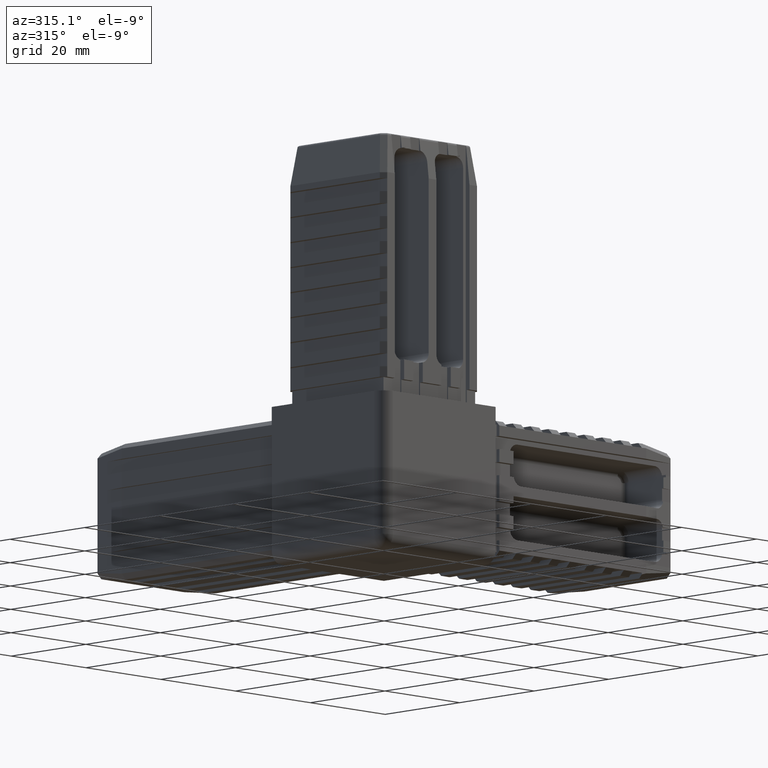
[diagram: clean part render]
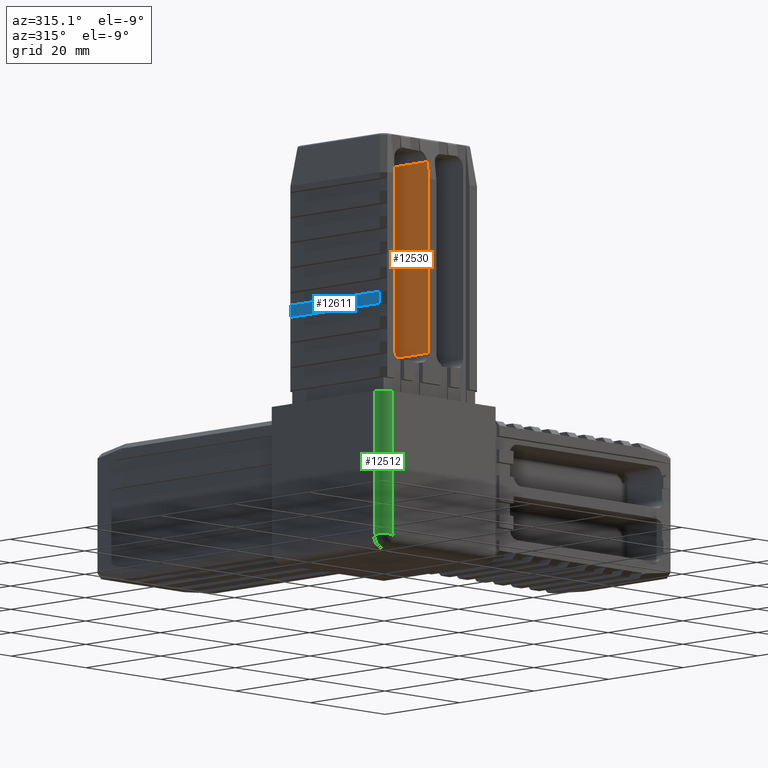
[diagram: same view with three faces highlighted in distinct colors, each labeled with its STEP entity id]
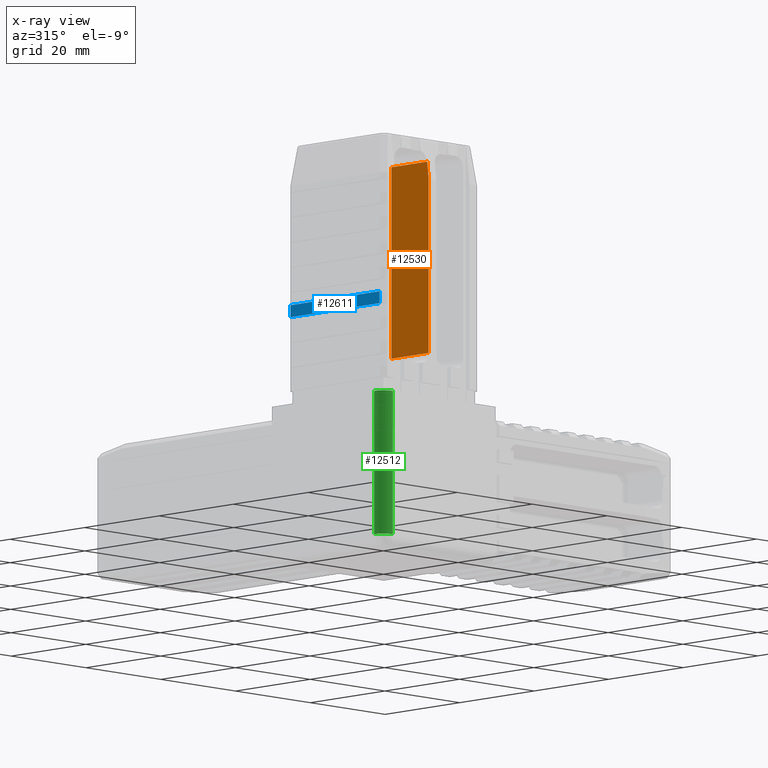
[diagram: x-ray of the same camera — body ghosted, the three highlighted faces saturated]
A machine part, auxiliary view with three faces highlighted in distinct colors.
The next image is the same camera in x-ray (body ghosted, the three faces saturated) — at least one of them is partly hidden behind the body in this view.
Their STEP definitions:

[orange] entity #12530 — the highlighted planar face has unit normal (1, 0, 0).
#672=PLANE('',#13541);
#1362=FACE_OUTER_BOUND('',#2055,.T.);
#2055=EDGE_LOOP('',(#10909,#10910,#10911,#10912,#10913));
#3240=LINE('',#19338,#4730);
#3447=LINE('',#20181,#4937);
#3450=LINE('',#20204,#4940);
#3453=LINE('',#20209,#4943);
#3602=LINE('',#20716,#5092);
#4730=VECTOR('',#15469,10.);
#4937=VECTOR('',#16192,10.);
#4940=VECTOR('',#16207,10.);
#4943=VECTOR('',#16214,10.);
#5092=VECTOR('',#16599,10.);
#6014=VERTEX_POINT('',#19335);
#6015=VERTEX_POINT('',#19337);
#6217=VERTEX_POINT('',#20168);
#6222=VERTEX_POINT('',#20179);
#6223=VERTEX_POINT('',#20192);
#7496=EDGE_CURVE('',#6014,#6015,#3240,.T.);
#7844=EDGE_CURVE('',#6222,#6217,#3447,.T.);
#7852=EDGE_CURVE('',#6223,#6014,#3450,.T.);
#7855=EDGE_CURVE('',#6217,#6223,#3453,.T.);
#8068=EDGE_CURVE('',#6015,#6222,#3602,.T.);
#10909=ORIENTED_EDGE('',*,*,#7496,.F.);
#10910=ORIENTED_EDGE('',*,*,#7852,.F.);
#10911=ORIENTED_EDGE('',*,*,#7855,.F.);
#10912=ORIENTED_EDGE('',*,*,#7844,.F.);
#10913=ORIENTED_EDGE('',*,*,#8068,.F.);
#12530=ADVANCED_FACE('',(#1362),#672,.F.);
#13541=AXIS2_PLACEMENT_3D('',#20715,#16597,#16598);
#15469=DIRECTION('',(5.41204316797527E-17,-0.119271512225471,-0.992861675346294));
#16192=DIRECTION('',(0.,1.,0.));
#16207=DIRECTION('',(0.,-1.,0.));
#16214=DIRECTION('',(-5.45095384620182E-17,0.,1.));
#16597=DIRECTION('center_axis',(1.,0.,5.45095384620182E-17));
#16598=DIRECTION('ref_axis',(5.45095384620182E-17,0.,-1.));
#16599=DIRECTION('',(5.45095384620182E-17,0.,-1.));
#19335=CARTESIAN_POINT('',(-0.916999999999997,-12.6072981935484,60.519));
#19337=CARTESIAN_POINT('',(-0.916999999999997,-13.,57.25));
#19338=CARTESIAN_POINT('',(-0.916999999999997,-12.4552722111179,61.7845224101356));
#20168=CARTESIAN_POINT('',(-0.916999999999995,-3.,23.784));
#20179=CARTESIAN_POINT('',(-0.916999999999995,-13.,23.784));
#20181=CARTESIAN_POINT('',(-0.916999999999995,-13.,23.784));
#20192=CARTESIAN_POINT('',(-0.916999999999997,-3.,60.519));
#20204=CARTESIAN_POINT('',(-0.916999999999997,-13.,60.519));
#20209=CARTESIAN_POINT('',(-0.916999999999997,-3.,52.33525));
#20715=CARTESIAN_POINT('Origin',(-0.916999999999997,-13.,62.519));
#20716=CARTESIAN_POINT('',(-0.916999999999996,-13.,40.2595));

[blue] entity #12611 — the highlighted planar face has unit normal (-1, 0, 0).
#753=PLANE('',#13622);
#1443=FACE_OUTER_BOUND('',#2136,.T.);
#2136=EDGE_LOOP('',(#11293,#11294,#11295,#11296));
#2745=LINE('',#18387,#4235);
#2748=LINE('',#18393,#4238);
#2813=LINE('',#18513,#4303);
#2814=LINE('',#18515,#4304);
#4235=VECTOR('',#14618,10.);
#4238=VECTOR('',#14623,10.);
#4303=VECTOR('',#14726,10.);
#4304=VECTOR('',#14729,10.);
#5736=VERTEX_POINT('',#18383);
#5737=VERTEX_POINT('',#18385);
#5739=VERTEX_POINT('',#18391);
#5775=VERTEX_POINT('',#18511);
#6990=EDGE_CURVE('',#5737,#5736,#2745,.T.);
#6993=EDGE_CURVE('',#5737,#5739,#2748,.T.);
#7058=EDGE_CURVE('',#5775,#5739,#2813,.T.);
#7059=EDGE_CURVE('',#5775,#5736,#2814,.T.);
#11293=ORIENTED_EDGE('',*,*,#6990,.F.);
#11294=ORIENTED_EDGE('',*,*,#6993,.T.);
#11295=ORIENTED_EDGE('',*,*,#7058,.F.);
#11296=ORIENTED_EDGE('',*,*,#7059,.T.);
#12611=ADVANCED_FACE('',(#1443),#753,.T.);
#13622=AXIS2_PLACEMENT_3D('',#20904,#16839,#16840);
#14618=DIRECTION('',(0.,0.,1.));
#14623=DIRECTION('',(0.,-1.,0.));
#14726=DIRECTION('',(0.,0.,-1.));
#14729=DIRECTION('',(0.,1.,0.));
#16839=DIRECTION('center_axis',(-1.,0.,0.));
#16840=DIRECTION('ref_axis',(0.,-1.,0.));
#18383=CARTESIAN_POINT('',(-13.,12.,34.397));
#18385=CARTESIAN_POINT('',(-13.,12.,32.098));
#18387=CARTESIAN_POINT('',(-13.,12.,18.));
#18391=CARTESIAN_POINT('',(-13.,-12.,32.098));
#18393=CARTESIAN_POINT('',(-13.,13.,32.098));
#18511=CARTESIAN_POINT('',(-13.,-12.,34.397));
#18513=CARTESIAN_POINT('',(-13.,-12.,18.));
#18515=CARTESIAN_POINT('',(-13.,13.,34.397));
#20904=CARTESIAN_POINT('Origin',(-13.,13.,18.));

[green] entity #12512 — the highlighted cylindrical surface (edge-blend (fillet) strip) has radius 2.5 mm, axis along (0, 0, -1).
#339=CIRCLE('',#13514,2.5);
#341=CIRCLE('',#13517,2.5);
#1344=FACE_OUTER_BOUND('',#2035,.T.);
#2035=EDGE_LOOP('',(#10739,#10740,#10741,#10742));
#3516=LINE('',#20536,#5006);
#3517=LINE('',#20537,#5007);
#5006=VECTOR('',#16465,10.);
#5007=VECTOR('',#16466,10.);
#6294=VERTEX_POINT('',#20526);
#6296=VERTEX_POINT('',#20529);
#6297=VERTEX_POINT('',#20533);
#6298=VERTEX_POINT('',#20534);
#7973=EDGE_CURVE('',#6296,#6294,#339,.F.);
#7975=EDGE_CURVE('',#6297,#6298,#341,.T.);
#7976=EDGE_CURVE('',#6298,#6296,#3516,.T.);
#7977=EDGE_CURVE('',#6294,#6297,#3517,.T.);
#10739=ORIENTED_EDGE('',*,*,#7975,.T.);
#10740=ORIENTED_EDGE('',*,*,#7976,.T.);
#10741=ORIENTED_EDGE('',*,*,#7973,.T.);
#10742=ORIENTED_EDGE('',*,*,#7977,.T.);
#12042=CYLINDRICAL_SURFACE('',#13516,2.5);
#12512=ADVANCED_FACE('',(#1344),#12042,.T.);
#13514=AXIS2_PLACEMENT_3D('',#20530,#16457,#16458);
#13516=AXIS2_PLACEMENT_3D('',#20532,#16461,#16462);
#13517=AXIS2_PLACEMENT_3D('',#20535,#16463,#16464);
#16457=DIRECTION('center_axis',(0.,0.,-1.));
#16458=DIRECTION('ref_axis',(-1.,0.,0.));
#16461=DIRECTION('center_axis',(0.,0.,-1.));
#16462=DIRECTION('ref_axis',(-0.707106781186547,-0.707106781186547,0.));
#16463=DIRECTION('center_axis',(0.,0.,-1.));
#16464=DIRECTION('ref_axis',(-0.707106781186547,-0.707106781186547,0.));
#16465=DIRECTION('',(0.,0.,-1.));
#16466=DIRECTION('',(0.,0.,1.));
#20526=CARTESIAN_POINT('',(-12.5,-15.,-12.5));
#20529=CARTESIAN_POINT('',(-15.,-12.5,-12.5));
#20530=CARTESIAN_POINT('Origin',(-12.5,-12.5,-12.5));
#20532=CARTESIAN_POINT('Origin',(-12.5,-12.5,0.));
#20533=CARTESIAN_POINT('',(-12.5,-15.,15.));
#20534=CARTESIAN_POINT('',(-15.,-12.5,15.));
#20535=CARTESIAN_POINT('Origin',(-12.5,-12.5,15.));
#20536=CARTESIAN_POINT('',(-15.,-12.5,0.));
#20537=CARTESIAN_POINT('',(-12.5,-15.,0.));